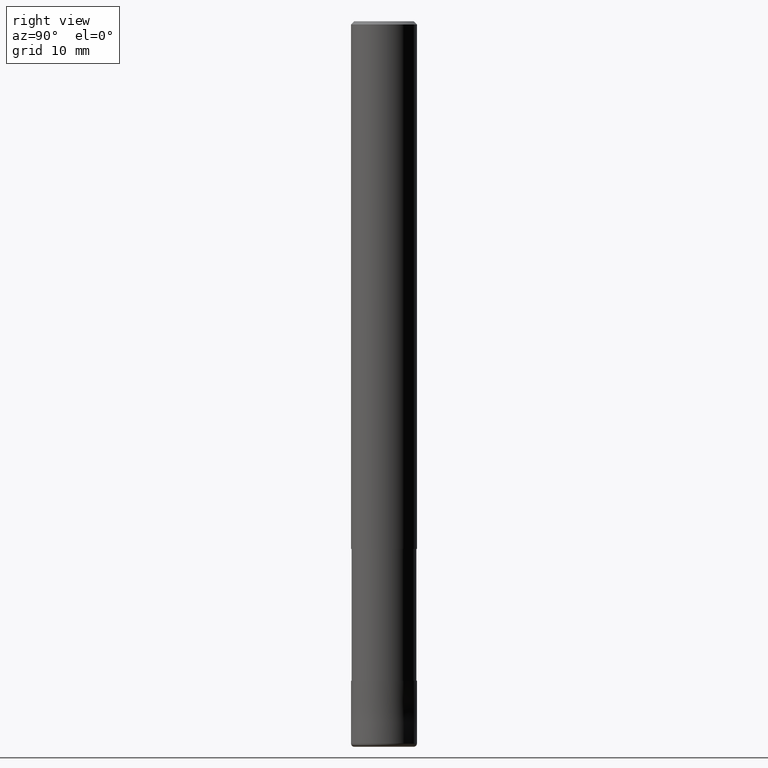
[diagram: clean part render]
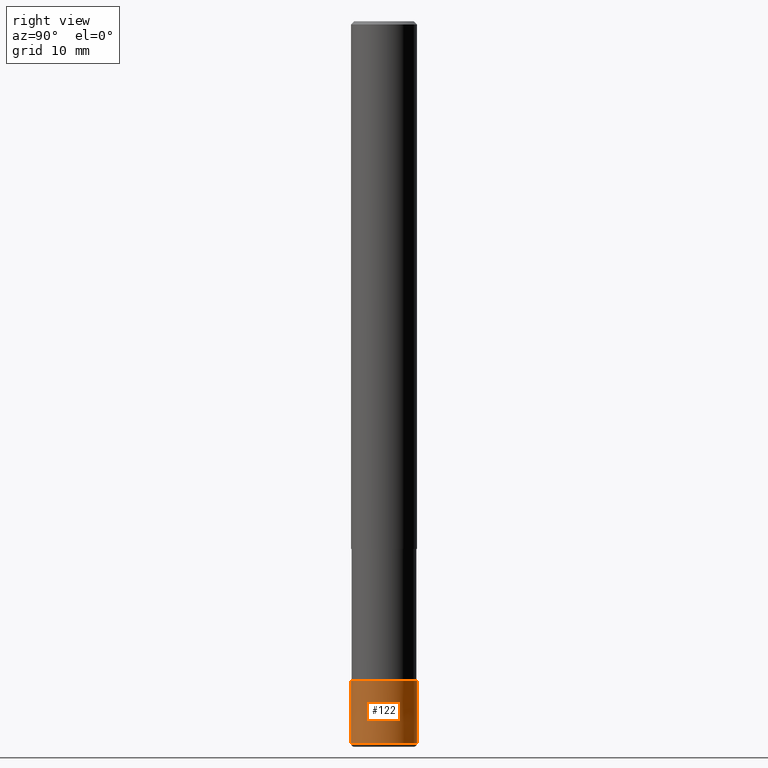
[diagram: same view with one face highlighted and labeled with its STEP entity id]
A machine part, right view. The second image highlights one B-rep face of the part: STEP entity #122.
In plain terms, the highlighted conical surface has half-angle 0.001 deg.
Its self-contained STEP definition (entity closure, byte-faithful):
#108=VERTEX_POINT('',#250);
#118=VERTEX_POINT('',#260);
#122=ADVANCED_FACE('',(#264),#265,.T.);
#142=VERTEX_POINT('',#289);
#154=EDGE_CURVE('',#142,#108,#302,.T.);
#160=EDGE_CURVE('',#142,#118,#309,.T.);
#166=VERTEX_POINT('',#316);
#184=EDGE_CURVE('',#166,#118,#336,.T.);
#192=EDGE_CURVE('',#108,#166,#344,.T.);
#250=CARTESIAN_POINT('',(0.0,5.0,-109.5));
#260=CARTESIAN_POINT('',(6.1229093084765E-016,-4.9999,-100.0));
#264=FACE_OUTER_BOUND('',#418,.T.);
#265=CONICAL_SURFACE('',#419,4.99995,1.05263157890604E-005);
#289=CARTESIAN_POINT('',(0.0,4.9999,-100.0));
#302=LINE('',#464,#465);
#309=CIRCLE('',#474,4.9999);
#316=CARTESIAN_POINT('',(6.12303176911189E-016,-5.0,-109.5));
#336=LINE('',#503,#504);
#344=CIRCLE('',#516,5.0);
#418=EDGE_LOOP('',(#587,#588,#589,#590));
#419=AXIS2_PLACEMENT_3D('',#591,#592,#593);
#464=CARTESIAN_POINT('',(-6.1229705387942E-016,4.99995,-104.75));
#465=VECTOR('',#644,1.0);
#474=AXIS2_PLACEMENT_3D('',#656,#657,#658);
#503=CARTESIAN_POINT('',(6.1229705387942E-016,-4.99995,-104.75));
#504=VECTOR('',#685,1.0);
#516=AXIS2_PLACEMENT_3D('',#695,#696,#697);
#587=ORIENTED_EDGE('',*,*,#154,.F.);
#588=ORIENTED_EDGE('',*,*,#160,.T.);
#589=ORIENTED_EDGE('',*,*,#184,.F.);
#590=ORIENTED_EDGE('',*,*,#192,.F.);
#591=CARTESIAN_POINT('',(0.0,0.0,-104.75));
#592=DIRECTION('',(0.0,-0.0,-1.0));
#593=DIRECTION('',(0.0,1.0,0.0));
#644=DIRECTION('',(-1.28905931973861E-021,1.0526315788866E-005,-0.999999999944598));
#656=CARTESIAN_POINT('',(0.0,0.0,-100.0));
#657=DIRECTION('',(0.0,0.0,-1.0));
#658=DIRECTION('',(0.0,1.0,0.0));
#685=DIRECTION('',(-1.28905931973861E-021,1.0526315788866E-005,0.999999999944598));
#695=CARTESIAN_POINT('',(0.0,0.0,-109.5));
#696=DIRECTION('',(0.0,0.0,-1.0));
#697=DIRECTION('',(0.0,1.0,0.0));